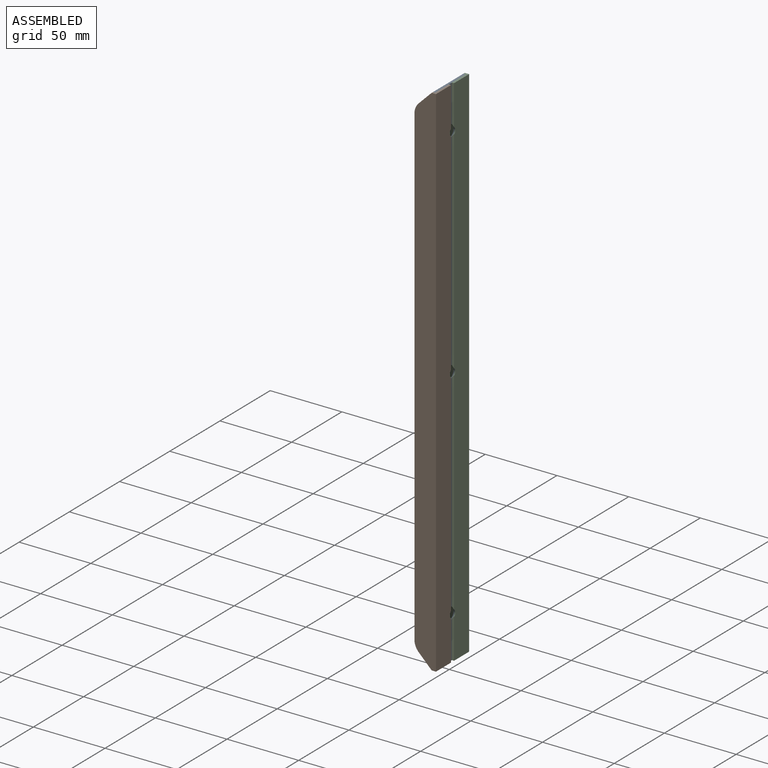
[diagram: assembled view]
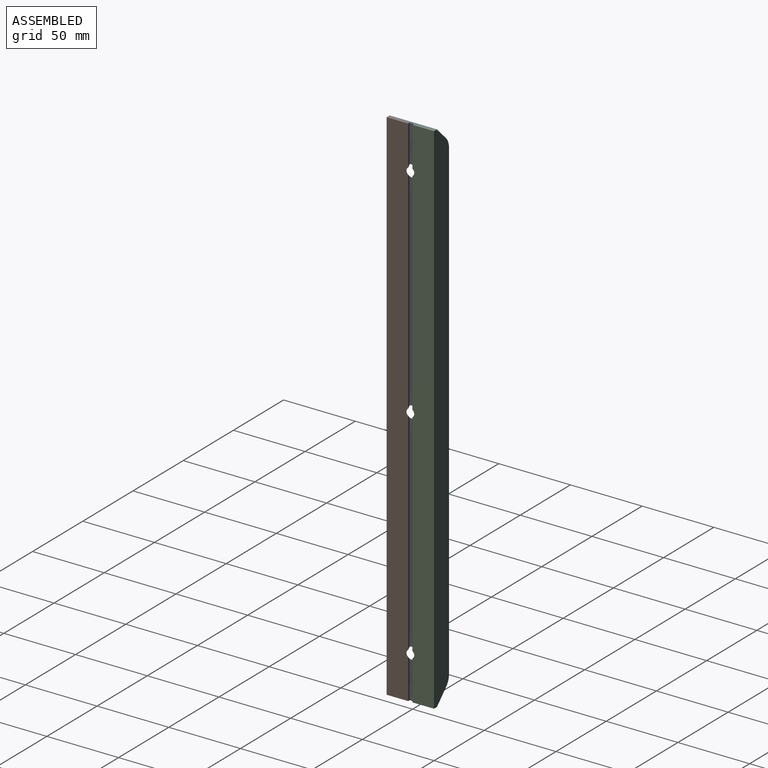
[diagram: assembled view, second angle]
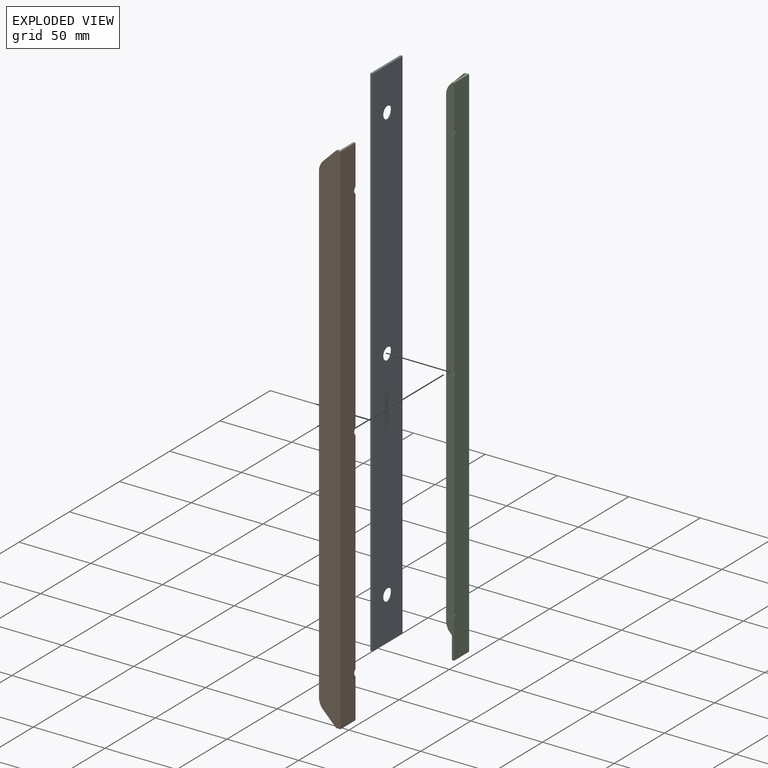
[diagram: exploded view]
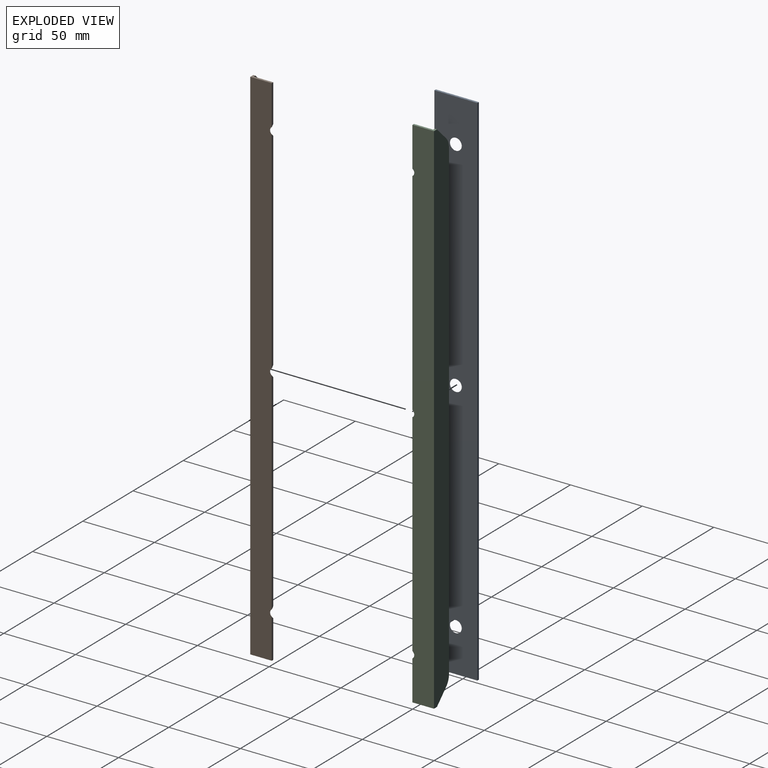
[diagram: exploded view, second angle]
ASSEMBLY  parts=3 mates=6
PART A: 9 faces, bbox 364x30x1.5 mm
  f0: plane 30x1.5mm, normal (-1,0,0), area 45mm2, adj f1,f3,f4,f5
  f1: plane 364x1.5mm, normal (0,-1,0), area 546mm2, adj f0,f2,f4,f5
  f2: plane 30x1.5mm, normal (1,0,0), area 45mm2, adj f1,f3,f4,f5
  f3: plane 364x1.5mm, normal (0,1,0), area 546mm2, adj f0,f2,f4,f5
  f4: plane 364x30mm, normal (0,0,1), area 10624.4mm2, adj f0,f1,f2,f3,f6,f7,f8
  f5: plane 364x30mm, normal (0,0,-1), area 10761.6mm2, adj f0,f1,f2,f3,f6,f7,f8
  f6: cone r=2.75mm half-angle=45deg, axis (0,0,1), area 64.6mm2, adj f4,f5
  f7: cone r=2.75mm half-angle=45deg, axis (0,0,1), area 64.6mm2, adj f4,f5
  f8: cone r=2.75mm half-angle=45deg, axis (0,0,1), area 64.6mm2, adj f4,f5
PART B: 21 faces, bbox 15.6x364.1x15.1 mm
  f0: plane 147.54x1.65mm, normal (1,0,0), area 219mm2, adj f4,f8,f17,f18,f19,f20
  f1: plane 27.84x1.65mm, normal (1,0,0), area 40.5mm2, adj f4,f8,f9,f19,f20
  f2: plane 147.54x1.65mm, normal (1,0,0), area 219mm2, adj f4,f8,f15,f16,f17,f18
  f3: plane 27.84x1.65mm, normal (1,0,0), area 40.5mm2, adj f4,f8,f10,f15,f16
  f4: plane 364x13.5mm, normal (0,0,1), area 4870.8mm2, adj f0,f1,f2,f3,f5,f9,f10,f16
  f5: plane 364x13.5mm, normal (1,0,0), area 4765.7mm2, adj f4,f6,f9,f10,f11,f12,f13,f14
  f6: plane 331.72x1.5mm, normal (0,0,1), area 497.6mm2, adj f5,f7,f13,f14
  f7: plane 364x15mm, normal (-1,0,0), area 5311.7mm2, adj f6,f8,f9,f10,f11,f12,f13,f14
  f8: plane 364x15mm, normal (0,0,-1), area 5447.8mm2, adj f0,f1,f2,f3,f7,f9,f10,f15
  f9: plane 15x3mm, normal (0,-1,0), area 24.7mm2, adj f1,f4,f5,f7,f8,f12
  f10: plane 15x3mm, normal (0,1,0), area 24.7mm2, adj f3,f4,f5,f7,f8,f11
  f11: plane 9.07x9.07mm, normal (0,0.71,0.71), area 19.2mm2, adj f5,f7,f10,f13
  f12: plane 9.07x9.07mm, normal (0,-0.71,0.71), area 19.2mm2, adj f5,f7,f9,f14
  f13: cylinder r=10mm len=7.07mm, axis (-1,0,0), area 11.8mm2, adj f5,f6,f7,f11
  f14: cylinder r=10mm len=7.07mm, axis (1,0,0), area 11.8mm2, adj f5,f6,f7,f12
  f15: cylinder r=2.75mm len=4.61mm, axis (0,0,1), area 0.8mm2, adj f2,f3,f8,f16
  f16: cone r=2.75mm half-angle=45deg, axis (0,0,1), area 14.4mm2, adj f2,f3,f4,f15
  f17: cylinder r=2.75mm len=4.61mm, axis (0,0,1), area 0.8mm2, adj f0,f2,f8,f18
  f18: cone r=2.75mm half-angle=45deg, axis (0,0,1), area 14.4mm2, adj f0,f2,f4,f17
  f19: cylinder r=2.75mm len=4.61mm, axis (0,0,1), area 0.8mm2, adj f0,f1,f8,f20
  f20: cone r=2.75mm half-angle=45deg, axis (0,0,1), area 14.4mm2, adj f0,f1,f4,f19
PART C: same geometry as B
PLACE A rot(axis=(0,-1,0),90deg) t=(0.75,-15,0)mm fixed
PLACE B rot(axis=(-0.58,-0.58,0.58),120deg) t=(2.25,-16.5,0)mm
PLACE C rot(axis=(0.58,-0.58,-0.58),120deg) t=(2.25,16.5,364)mm
MATE planar C.f5 <-> A.f3  axis (0,-1,0) through (-5.91,15,182)mm
MATE planar C.f4 <-> A.f7  axis (-1,0,0) through (0.75,8.3,182)mm
MATE planar A.f1 <-> B.f5  axis (0,-1,0) through (0,-15,182)mm
MATE planar C.f9 <-> A.f0  axis (0,0,-1) through (1.36,9.61,0)mm
MATE planar B.f4 <-> A.f7  axis (-1,0,0) through (0.75,-8.3,182)mm
MATE planar B.f10 <-> A.f0  axis (0,0,-1) through (0.75,-15,0)mm
